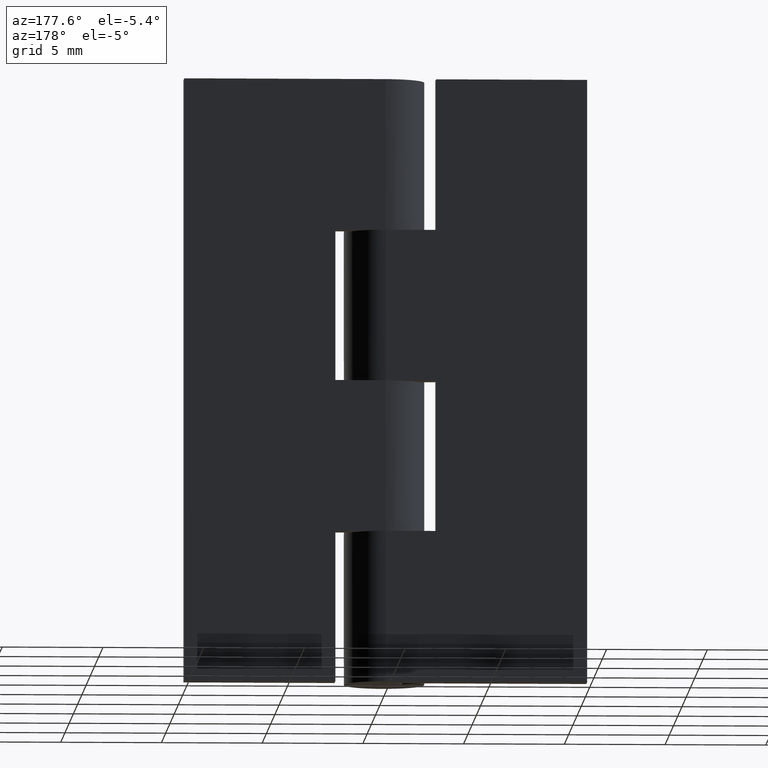
[diagram: clean part render]
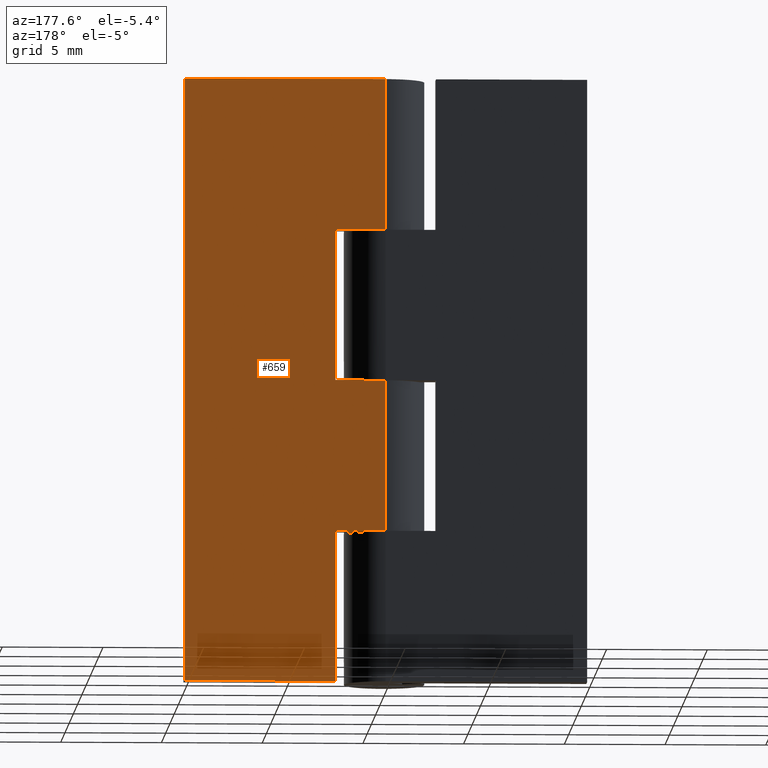
[diagram: same view with one face highlighted and labeled with its STEP entity id]
A machine part, auxiliary view. The second image highlights one B-rep face of the part: STEP entity #659.
In plain terms, the highlighted face is a freeform B-spline surface patch.
Its self-contained STEP definition (entity closure, byte-faithful):
#51=CARTESIAN_POINT('',(2.500000000000000,2.0,22.500000000000000));
#52=VERTEX_POINT('',#51);
#58=CARTESIAN_POINT('',(2.500000000000000,2.0,15.0));
#59=VERTEX_POINT('',#58);
#60=CARTESIAN_POINT('',(2.500000000000000,2.0,15.0));
#61=CARTESIAN_POINT('',(2.500000000000000,2.0,22.500000000000000));
#62=QUASI_UNIFORM_CURVE('',1,(#60,#61),.UNSPECIFIED.,.F.,.U.);
#63=EDGE_CURVE('',#59,#52,#62,.T.);
#115=CARTESIAN_POINT('',(0.0,2.0,22.500000000000000));
#116=VERTEX_POINT('',#115);
#136=CARTESIAN_POINT('',(2.500000000000000,2.0,22.500000000000000));
#137=CARTESIAN_POINT('',(0.0,2.0,22.500000000000000));
#138=QUASI_UNIFORM_CURVE('',1,(#136,#137),.UNSPECIFIED.,.F.,.U.);
#139=EDGE_CURVE('',#52,#116,#138,.T.);
#156=CARTESIAN_POINT('',(0.0,2.0,15.0));
#157=VERTEX_POINT('',#156);
#158=CARTESIAN_POINT('',(0.0,2.0,15.0));
#159=CARTESIAN_POINT('',(2.500000000000000,2.0,15.0));
#160=QUASI_UNIFORM_CURVE('',1,(#158,#159),.UNSPECIFIED.,.F.,.U.);
#161=EDGE_CURVE('',#157,#59,#160,.T.);
#227=CARTESIAN_POINT('',(2.500000000000000,2.0,7.500000000000000));
#228=VERTEX_POINT('',#227);
#234=CARTESIAN_POINT('',(2.500000000000000,2.0,0.0));
#235=VERTEX_POINT('',#234);
#236=CARTESIAN_POINT('',(2.500000000000000,2.0,0.0));
#237=CARTESIAN_POINT('',(2.500000000000000,2.0,7.500000000000000));
#238=QUASI_UNIFORM_CURVE('',1,(#236,#237),.UNSPECIFIED.,.F.,.U.);
#239=EDGE_CURVE('',#235,#228,#238,.T.);
#291=CARTESIAN_POINT('',(0.0,2.0,7.500000000000000));
#292=VERTEX_POINT('',#291);
#312=CARTESIAN_POINT('',(2.500000000000000,2.0,7.500000000000000));
#313=CARTESIAN_POINT('',(0.0,2.0,7.500000000000000));
#314=QUASI_UNIFORM_CURVE('',1,(#312,#313),.UNSPECIFIED.,.F.,.U.);
#315=EDGE_CURVE('',#228,#292,#314,.T.);
#331=CARTESIAN_POINT('',(-3.673819E-016,2.0,30.0));
#332=VERTEX_POINT('',#331);
#333=CARTESIAN_POINT('',(10.0,2.0,30.0));
#334=VERTEX_POINT('',#333);
#335=CARTESIAN_POINT('',(-3.673819E-016,2.0,30.0));
#336=CARTESIAN_POINT('',(10.0,2.0,30.0));
#337=QUASI_UNIFORM_CURVE('',1,(#335,#336),.UNSPECIFIED.,.F.,.U.);
#338=EDGE_CURVE('',#332,#334,#337,.T.);
#409=CARTESIAN_POINT('',(10.0,2.0,0.0));
#410=VERTEX_POINT('',#409);
#418=CARTESIAN_POINT('',(10.0,2.0,30.0));
#419=CARTESIAN_POINT('',(10.0,2.0,0.0));
#420=QUASI_UNIFORM_CURVE('',1,(#418,#419),.UNSPECIFIED.,.F.,.U.);
#421=EDGE_CURVE('',#334,#410,#420,.T.);
#438=CARTESIAN_POINT('',(2.500000000000000,2.0,0.0));
#439=CARTESIAN_POINT('',(10.0,2.0,0.0));
#440=QUASI_UNIFORM_CURVE('',1,(#438,#439),.UNSPECIFIED.,.F.,.U.);
#441=EDGE_CURVE('',#235,#410,#440,.T.);
#481=CARTESIAN_POINT('',(-3.673819E-016,2.0,30.0));
#482=CARTESIAN_POINT('',(0.0,2.0,22.500000000000000));
#483=QUASI_UNIFORM_CURVE('',1,(#481,#482),.UNSPECIFIED.,.F.,.U.);
#484=EDGE_CURVE('',#332,#116,#483,.T.);
#512=CARTESIAN_POINT('',(0.0,2.0,15.0));
#513=CARTESIAN_POINT('',(0.0,2.0,7.500000000000000));
#514=QUASI_UNIFORM_CURVE('',1,(#512,#513),.UNSPECIFIED.,.F.,.U.);
#515=EDGE_CURVE('',#157,#292,#514,.T.);
#642=CARTESIAN_POINT('',(-0.499499980618059,2.0,-1.498499941854179));
#643=CARTESIAN_POINT('',(-0.499499980618059,2.0,31.498500746516889));
#644=CARTESIAN_POINT('',(10.499500248838959,2.0,-1.498499941854179));
#645=CARTESIAN_POINT('',(10.499500248838959,2.0,31.498500746516889));
#646=B_SPLINE_SURFACE_WITH_KNOTS('',1,1,((#642,#644),(#643,#645)),.UNSPECIFIED.,.F.,.F.,.U.,(2,2),(2,2),(0.0,32.997000688371067),(0.0,10.999000229457019),.UNSPECIFIED.);
#647=ORIENTED_EDGE('',*,*,#515,.F.);
#648=ORIENTED_EDGE('',*,*,#161,.T.);
#649=ORIENTED_EDGE('',*,*,#63,.T.);
#650=ORIENTED_EDGE('',*,*,#139,.T.);
#651=ORIENTED_EDGE('',*,*,#484,.F.);
#652=ORIENTED_EDGE('',*,*,#338,.T.);
#653=ORIENTED_EDGE('',*,*,#421,.T.);
#654=ORIENTED_EDGE('',*,*,#441,.F.);
#655=ORIENTED_EDGE('',*,*,#239,.T.);
#656=ORIENTED_EDGE('',*,*,#315,.T.);
#657=EDGE_LOOP('',(#647,#648,#649,#650,#651,#652,#653,#654,#655,#656));
#658=FACE_OUTER_BOUND('',#657,.T.);
#659=ADVANCED_FACE('',(#658),#646,.T.);